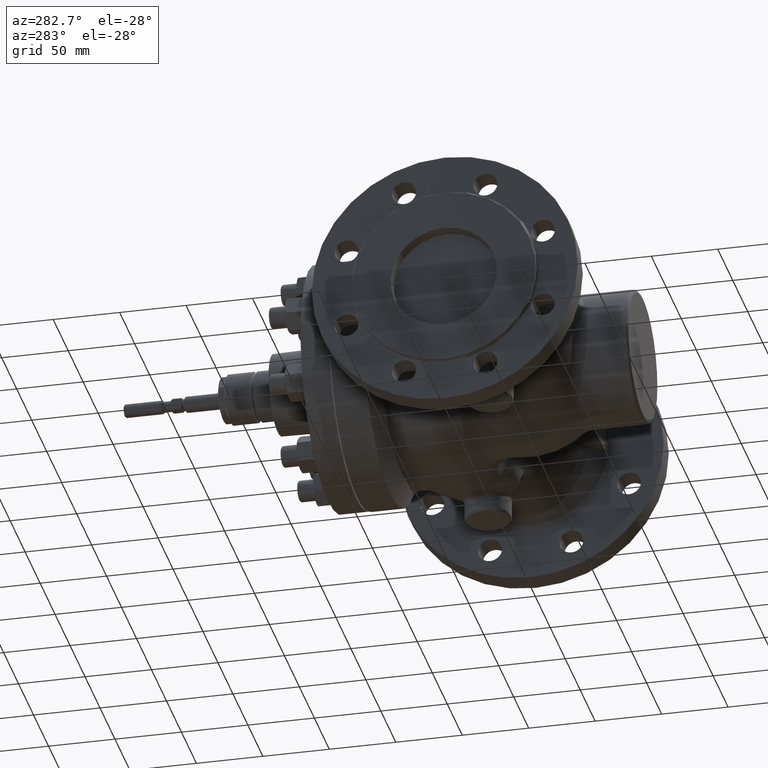
[diagram: clean part render]
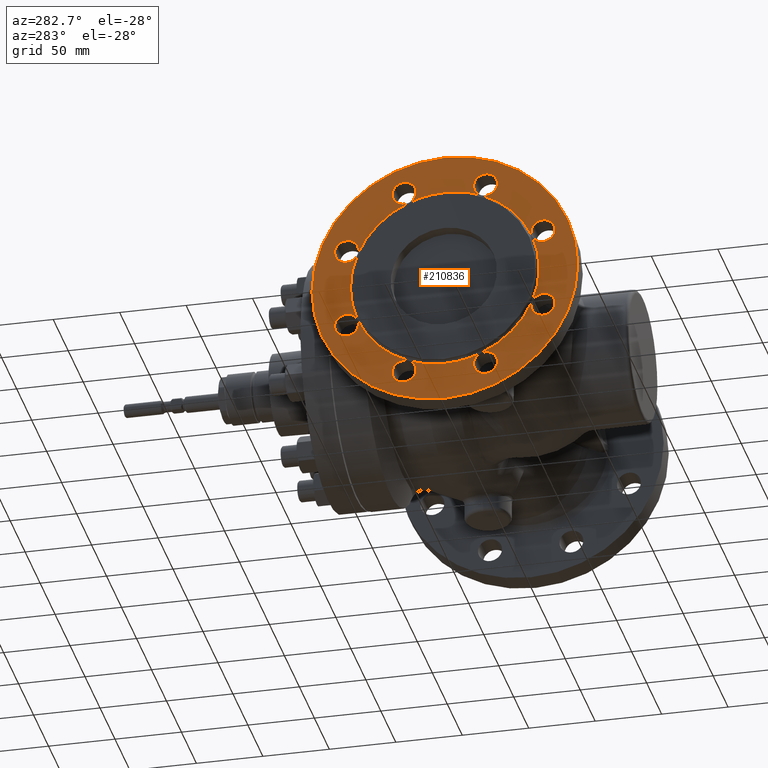
[diagram: same view with one face highlighted and labeled with its STEP entity id]
A machine part, auxiliary view. The second image highlights one B-rep face of the part: STEP entity #210836.
In plain terms, the highlighted planar face has unit normal (1, 0, 0).
Its self-contained STEP definition (entity closure, byte-faithful):
#1785 = CIRCLE ( 'NONE', #119734, 71.00000000000000000 ) ;
#1994 = EDGE_CURVE ( 'NONE', #60912, #6606, #66697, .T. ) ;
#2110 = DIRECTION ( 'NONE',  ( -1.000000000000000000, 0.0000000000000000000, 0.0000000000000000000 ) ) ;
#3105 = CIRCLE ( 'NONE', #41149, 71.00000000000000000 ) ;
#3149 = ORIENTED_EDGE ( 'NONE', *, *, #214498, .F. ) ;
#3816 = AXIS2_PLACEMENT_3D ( 'NONE', #120384, #16961, #137665 ) ;
#4684 = ORIENTED_EDGE ( 'NONE', *, *, #207527, .F. ) ;
#5909 = EDGE_CURVE ( 'NONE', #163889, #186524, #88114, .T. ) ;
#6013 = DIRECTION ( 'NONE',  ( 0.0000000000000000000, 0.0000000000000000000, -1.000000000000000000 ) ) ;
#6606 = VERTEX_POINT ( 'NONE', #188975 ) ;
#8172 = DIRECTION ( 'NONE',  ( -1.000000000000000000, 0.0000000000000000000, -0.0000000000000000000 ) ) ;
#8519 = CIRCLE ( 'NONE', #126466, 71.00000000000000000 ) ;
#8852 = DIRECTION ( 'NONE',  ( -1.000000000000000000, 0.0000000000000000000, -0.0000000000000000000 ) ) ;
#9174 = DIRECTION ( 'NONE',  ( 0.0000000000000000000, 0.0000000000000000000, -1.000000000000000000 ) ) ;
#9451 = CIRCLE ( 'NONE', #89922, 8.999999999999994700 ) ;
#9944 = ORIENTED_EDGE ( 'NONE', *, *, #95791, .F. ) ;
#10258 = CARTESIAN_POINT ( 'NONE',  ( -152.0000000000000000, 30.61467458920700600, -73.91036260090301400 ) ) ;
#10967 = CARTESIAN_POINT ( 'NONE',  ( -152.0000000000000000, 73.91036260090334100, 30.61467458920623100 ) ) ;
#11139 = CARTESIAN_POINT ( 'NONE',  ( -152.0000000000000000, 0.0000000000000000000, 0.0000000000000000000 ) ) ;
#12964 = DIRECTION ( 'NONE',  ( 1.000000000000000000, 0.0000000000000000000, 0.0000000000000000000 ) ) ;
#13779 = DIRECTION ( 'NONE',  ( -1.000000000000000000, 0.0000000000000000000, -0.0000000000000000000 ) ) ;
#16538 = AXIS2_PLACEMENT_3D ( 'NONE', #52360, #173123, #69749 ) ;
#16961 = DIRECTION ( 'NONE',  ( -1.000000000000000000, 0.0000000000000000000, 0.0000000000000000000 ) ) ;
#18162 = AXIS2_PLACEMENT_3D ( 'NONE', #140392, #37029, #157790 ) ;
#19653 = CIRCLE ( 'NONE', #156732, 8.999999999999991100 ) ;
#19673 = CARTESIAN_POINT ( 'NONE',  ( -152.0000000000000000, -67.54640157022421900, -36.97863561988569400 ) ) ;
#19874 = AXIS2_PLACEMENT_3D ( 'NONE', #33044, #153793, #50390 ) ;
#21544 = ORIENTED_EDGE ( 'NONE', *, *, #184461, .T. ) ;
#22232 = DIRECTION ( 'NONE',  ( -1.000000000000000000, -0.0000000000000000000, 0.0000000000000000000 ) ) ;
#22642 = ORIENTED_EDGE ( 'NONE', *, *, #183065, .F. ) ;
#23162 = CARTESIAN_POINT ( 'NONE',  ( -152.0000000000000000, 73.91036260090334100, 30.61467458920623100 ) ) ;
#26119 = CIRCLE ( 'NONE', #157740, 8.999999999999994700 ) ;
#26581 = CARTESIAN_POINT ( 'NONE',  ( -152.0000000000000000, -27.17052369792075000, 65.59544680830160200 ) ) ;
#26882 = CARTESIAN_POINT ( 'NONE',  ( -152.0000000000000000, 27.17052369792210000, 65.59544680830104800 ) ) ;
#27617 = DIRECTION ( 'NONE',  ( 0.0000000000000000000, 0.7071067811865483500, 0.7071067811865468000 ) ) ;
#28283 = CIRCLE ( 'NONE', #182752, 71.00000000000000000 ) ;
#28324 = DIRECTION ( 'NONE',  ( 0.0000000000000000000, -0.7071067811865392500, 0.7071067811865557900 ) ) ;
#28410 = EDGE_CURVE ( 'NONE', #214951, #136368, #62942, .T. ) ;
#28502 = DIRECTION ( 'NONE',  ( 0.0000000000000000000, 0.0000000000000000000, -1.000000000000000000 ) ) ;
#31631 = AXIS2_PLACEMENT_3D ( 'NONE', #139790, #36435, #157194 ) ;
#33044 = CARTESIAN_POINT ( 'NONE',  ( -152.0000000000000000, -30.61467458920748900, -73.91036260090280100 ) ) ;
#35061 = CIRCLE ( 'NONE', #186733, 8.999999999999992900 ) ;
#35837 = DIRECTION ( 'NONE',  ( 0.0000000000000000000, 0.0000000000000000000, -1.000000000000000000 ) ) ;
#36265 = CIRCLE ( 'NONE', #105990, 8.999999999999996400 ) ;
#36435 = DIRECTION ( 'NONE',  ( 1.000000000000000000, 0.0000000000000000000, 0.0000000000000000000 ) ) ;
#37029 = DIRECTION ( 'NONE',  ( -1.000000000000000000, 0.0000000000000000000, 0.0000000000000000000 ) ) ;
#37248 = CIRCLE ( 'NONE', #182819, 8.999999999999994700 ) ;
#37424 = EDGE_LOOP ( 'NONE', ( #208990, #157792, #146746, #183095, #70281, #160712, #61340, #187924, #91752, #40925, #3149, #182311, #164377, #165674, #22642, #52126, #93918, #21544, #76875, #150359, #9944, #88940, #129931, #51671, #93120, #153531, #76435, #200076, #100669, #4684, #110560, #165907, #107068, #104419 ) ) ;
#38708 = CARTESIAN_POINT ( 'NONE',  ( -152.0000000000000000, -21.61467458920749600, -73.91036260090282900 ) ) ;
#39411 = DIRECTION ( 'NONE',  ( -1.000000000000000000, -0.0000000000000000000, -0.0000000000000000000 ) ) ;
#39873 = AXIS2_PLACEMENT_3D ( 'NONE', #69815, #139187, #35837 ) ;
#39882 = DIRECTION ( 'NONE',  ( -1.000000000000000000, 0.0000000000000000000, 0.0000000000000000000 ) ) ;
#40325 = VERTEX_POINT ( 'NONE', #45529 ) ;
#40496 = DIRECTION ( 'NONE',  ( 0.0000000000000000000, -0.7071067811865392500, 0.7071067811865557900 ) ) ;
#40925 = ORIENTED_EDGE ( 'NONE', *, *, #222165, .T. ) ;
#41149 = AXIS2_PLACEMENT_3D ( 'NONE', #87257, #208030, #104649 ) ;
#41284 = AXIS2_PLACEMENT_3D ( 'NONE', #23162, #143882, #40496 ) ;
#41391 = VERTEX_POINT ( 'NONE', #141954 ) ;
#41672 = DIRECTION ( 'NONE',  ( -1.000000000000000000, 0.0000000000000000000, 0.0000000000000000000 ) ) ;
#43558 = EDGE_CURVE ( 'NONE', #6606, #70637, #35061, .T. ) ;
#45529 = CARTESIAN_POINT ( 'NONE',  ( -152.0000000000000000, 65.59544680830133200, -27.17052369792141400 ) ) ;
#45813 = DIRECTION ( 'NONE',  ( -1.000000000000000000, 0.0000000000000000000, 0.0000000000000000000 ) ) ;
#46784 = CARTESIAN_POINT ( 'NONE',  ( -152.0000000000000000, 0.0000000000000000000, 0.0000000000000000000 ) ) ;
#49306 = VERTEX_POINT ( 'NONE', #57943 ) ;
#49864 = FACE_OUTER_BOUND ( 'NONE', #196325, .T. ) ;
#50390 = DIRECTION ( 'NONE',  ( 0.0000000000000000000, 1.000000000000000000, -3.083952846180992100E-015 ) ) ;
#51671 = ORIENTED_EDGE ( 'NONE', *, *, #64474, .F. ) ;
#52126 = ORIENTED_EDGE ( 'NONE', *, *, #160630, .F. ) ;
#52360 = CARTESIAN_POINT ( 'NONE',  ( -152.0000000000000000, -73.91036260090311300, -30.61467458920673900 ) ) ;
#53356 = CARTESIAN_POINT ( 'NONE',  ( -152.0000000000000000, 24.25071355852807300, -80.27432363158193600 ) ) ;
#53823 = EDGE_CURVE ( 'NONE', #207499, #148430, #28283, .T. ) ;
#54824 = CARTESIAN_POINT ( 'NONE',  ( -152.0000000000000000, -30.61467458920748900, -73.91036260090280100 ) ) ;
#57513 = EDGE_CURVE ( 'NONE', #203152, #41391, #109070, .T. ) ;
#57943 = CARTESIAN_POINT ( 'NONE',  ( -152.0000000000000000, 39.61467458920800800, 73.91036260090250200 ) ) ;
#60781 = EDGE_CURVE ( 'NONE', #203152, #179415, #138484, .T. ) ;
#60854 = DIRECTION ( 'NONE',  ( -1.000000000000000000, -0.0000000000000000000, -0.0000000000000000000 ) ) ;
#60912 = VERTEX_POINT ( 'NONE', #19673 ) ;
#61285 = CARTESIAN_POINT ( 'NONE',  ( -152.0000000000000000, 21.61467458920801100, 73.91036260090270100 ) ) ;
#61340 = ORIENTED_EDGE ( 'NONE', *, *, #203933, .F. ) ;
#62263 = VERTEX_POINT ( 'NONE', #181288 ) ;
#62781 = EDGE_CURVE ( 'NONE', #40325, #163889, #70975, .T. ) ;
#62942 = CIRCLE ( 'NONE', #157380, 100.0000000000000000 ) ;
#63707 = CIRCLE ( 'NONE', #163015, 71.00000000000000000 ) ;
#64158 = DIRECTION ( 'NONE',  ( 0.0000000000000000000, 0.0000000000000000000, 1.000000000000000000 ) ) ;
#64474 = EDGE_CURVE ( 'NONE', #96248, #174652, #89561, .T. ) ;
#65655 = CIRCLE ( 'NONE', #31631, 71.00000000000000000 ) ;
#66189 = DIRECTION ( 'NONE',  ( -1.000000000000000000, 0.0000000000000000000, 0.0000000000000000000 ) ) ;
#66306 = CIRCLE ( 'NONE', #153861, 8.999999999999996400 ) ;
#66697 = CIRCLE ( 'NONE', #89872, 8.999999999999992900 ) ;
#67730 = CARTESIAN_POINT ( 'NONE',  ( -152.0000000000000000, 1.224646799147353200E-014, -100.0000000000000000 ) ) ;
#67788 = CIRCLE ( 'NONE', #41284, 8.999999999999994700 ) ;
#68122 = DIRECTION ( 'NONE',  ( -1.000000000000000000, 0.0000000000000000000, 0.0000000000000000000 ) ) ;
#69749 = DIRECTION ( 'NONE',  ( 0.0000000000000000000, 0.7071067811865440200, -0.7071067811865509000 ) ) ;
#69815 = CARTESIAN_POINT ( 'NONE',  ( -152.0000000000000000, 69.00000000000000000, 0.0000000000000000000 ) ) ;
#70281 = ORIENTED_EDGE ( 'NONE', *, *, #164621, .T. ) ;
#70637 = VERTEX_POINT ( 'NONE', #108557 ) ;
#70975 = CIRCLE ( 'NONE', #83275, 71.00000000000000000 ) ;
#72006 = CARTESIAN_POINT ( 'NONE',  ( -152.0000000000000000, 0.0000000000000000000, 100.0000000000000000 ) ) ;
#72202 = DIRECTION ( 'NONE',  ( 0.0000000000000000000, 1.000000000000000000, -3.083952846180992100E-015 ) ) ;
#72314 = CARTESIAN_POINT ( 'NONE',  ( -152.0000000000000000, 0.0000000000000000000, 0.0000000000000000000 ) ) ;
#75772 = CARTESIAN_POINT ( 'NONE',  ( -152.0000000000000000, -36.97863561988546600, 67.54640157022436100 ) ) ;
#76435 = ORIENTED_EDGE ( 'NONE', *, *, #150073, .T. ) ;
#76875 = ORIENTED_EDGE ( 'NONE', *, *, #43558, .F. ) ;
#78516 = CARTESIAN_POINT ( 'NONE',  ( -152.0000000000000000, 73.91036260090291400, -21.61467458920724000 ) ) ;
#79031 = AXIS2_PLACEMENT_3D ( 'NONE', #215963, #112588, #9174 ) ;
#79629 = EDGE_CURVE ( 'NONE', #174652, #87482, #26119, .T. ) ;
#79980 = CARTESIAN_POINT ( 'NONE',  ( -152.0000000000000000, -24.25071355852750400, 80.27432363158209200 ) ) ;
#80059 = CARTESIAN_POINT ( 'NONE',  ( -152.0000000000000000, -27.17052369792164200, -65.59544680830123300 ) ) ;
#81647 = CARTESIAN_POINT ( 'NONE',  ( -152.0000000000000000, 0.0000000000000000000, 0.0000000000000000000 ) ) ;
#83115 = CARTESIAN_POINT ( 'NONE',  ( -152.0000000000000000, 30.61467458920800800, 73.91036260090260200 ) ) ;
#83275 = AXIS2_PLACEMENT_3D ( 'NONE', #81647, #202391, #99007 ) ;
#84936 = FACE_BOUND ( 'NONE', #37424, .T. ) ;
#85116 = VERTEX_POINT ( 'NONE', #119896 ) ;
#86466 = AXIS2_PLACEMENT_3D ( 'NONE', #117204, #13779, #134506 ) ;
#86549 = EDGE_CURVE ( 'NONE', #41391, #197203, #9451, .T. ) ;
#87257 = CARTESIAN_POINT ( 'NONE',  ( -152.0000000000000000, 0.0000000000000000000, 0.0000000000000000000 ) ) ;
#87482 = VERTEX_POINT ( 'NONE', #80059 ) ;
#88114 = CIRCLE ( 'NONE', #173856, 8.999999999999994700 ) ;
#88853 = EDGE_CURVE ( 'NONE', #207499, #203086, #217150, .T. ) ;
#88940 = ORIENTED_EDGE ( 'NONE', *, *, #145115, .T. ) ;
#89561 = CIRCLE ( 'NONE', #19874, 8.999999999999994700 ) ;
#89633 = DIRECTION ( 'NONE',  ( 0.0000000000000000000, 0.0000000000000000000, -1.000000000000000000 ) ) ;
#89872 = AXIS2_PLACEMENT_3D ( 'NONE', #143261, #39882, #160668 ) ;
#89922 = AXIS2_PLACEMENT_3D ( 'NONE', #96267, #217020, #113642 ) ;
#90843 = DIRECTION ( 'NONE',  ( 1.000000000000000000, 0.0000000000000000000, 0.0000000000000000000 ) ) ;
#91752 = ORIENTED_EDGE ( 'NONE', *, *, #53823, .T. ) ;
#93120 = ORIENTED_EDGE ( 'NONE', *, *, #136528, .F. ) ;
#93148 = EDGE_CURVE ( 'NONE', #179415, #164323, #19653, .T. ) ;
#93918 = ORIENTED_EDGE ( 'NONE', *, *, #86549, .F. ) ;
#94486 = EDGE_CURVE ( 'NONE', #170181, #163889, #143723, .T. ) ;
#95791 = EDGE_CURVE ( 'NONE', #70637, #60912, #130085, .T. ) ;
#96248 = VERTEX_POINT ( 'NONE', #38708 ) ;
#96267 = CARTESIAN_POINT ( 'NONE',  ( -152.0000000000000000, -73.91036260090291400, 30.61467458920723300 ) ) ;
#98052 = DIRECTION ( 'NONE',  ( 1.000000000000000000, 0.0000000000000000000, 0.0000000000000000000 ) ) ;
#98189 = CARTESIAN_POINT ( 'NONE',  ( -152.0000000000000000, 73.91036260090291400, -30.61467458920723300 ) ) ;
#99007 = DIRECTION ( 'NONE',  ( 0.0000000000000000000, 0.0000000000000000000, -1.000000000000000000 ) ) ;
#99739 = CARTESIAN_POINT ( 'NONE',  ( -152.0000000000000000, 0.0000000000000000000, -71.00000000000000000 ) ) ;
#100319 = DIRECTION ( 'NONE',  ( -1.000000000000000000, -0.0000000000000000000, 0.0000000000000000000 ) ) ;
#100490 = DIRECTION ( 'NONE',  ( 0.0000000000000000000, -1.000000000000000000, 1.079383496163347300E-014 ) ) ;
#100669 = ORIENTED_EDGE ( 'NONE', *, *, #224161, .F. ) ;
#100809 = DIRECTION ( 'NONE',  ( -1.000000000000000000, 0.0000000000000000000, 0.0000000000000000000 ) ) ;
#102175 = EDGE_CURVE ( 'NONE', #186524, #170181, #67788, .T. ) ;
#103690 = AXIS2_PLACEMENT_3D ( 'NONE', #149212, #45813, #166607 ) ;
#104419 = ORIENTED_EDGE ( 'NONE', *, *, #185060, .F. ) ;
#104458 = CIRCLE ( 'NONE', #79031, 71.00000000000000000 ) ;
#104649 = DIRECTION ( 'NONE',  ( 0.0000000000000000000, 0.0000000000000000000, -1.000000000000000000 ) ) ;
#105551 = CARTESIAN_POINT ( 'NONE',  ( -152.0000000000000000, -30.61467458920648700, 73.91036260090322700 ) ) ;
#105990 = AXIS2_PLACEMENT_3D ( 'NONE', #125629, #22232, #142962 ) ;
#106750 = CARTESIAN_POINT ( 'NONE',  ( -152.0000000000000000, 67.54640157022448900, 36.97863561988523200 ) ) ;
#107068 = ORIENTED_EDGE ( 'NONE', *, *, #181406, .F. ) ;
#108557 = CARTESIAN_POINT ( 'NONE',  ( -152.0000000000000000, -65.59544680830151700, -27.17052369792098400 ) ) ;
#109070 = CIRCLE ( 'NONE', #123614, 71.00000000000000000 ) ;
#109432 = DIRECTION ( 'NONE',  ( 1.000000000000000000, 0.0000000000000000000, 0.0000000000000000000 ) ) ;
#110236 = CARTESIAN_POINT ( 'NONE',  ( -152.0000000000000000, 65.59544680830170200, 27.17052369792052600 ) ) ;
#110525 = CARTESIAN_POINT ( 'NONE',  ( -152.0000000000000000, 36.97863561988593500, -67.54640157022409100 ) ) ;
#110560 = ORIENTED_EDGE ( 'NONE', *, *, #165245, .T. ) ;
#111576 = CARTESIAN_POINT ( 'NONE',  ( -152.0000000000000000, 73.91036260090334100, 30.61467458920623100 ) ) ;
#112260 = CARTESIAN_POINT ( 'NONE',  ( -152.0000000000000000, 30.61467458920800800, 73.91036260090260200 ) ) ;
#112579 = AXIS2_PLACEMENT_3D ( 'NONE', #171518, #68122, #188858 ) ;
#112588 = DIRECTION ( 'NONE',  ( 1.000000000000000000, 0.0000000000000000000, 0.0000000000000000000 ) ) ;
#113642 = DIRECTION ( 'NONE',  ( 0.0000000000000000000, 0.0000000000000000000, -1.000000000000000000 ) ) ;
#115589 = DIRECTION ( 'NONE',  ( 0.0000000000000000000, 0.0000000000000000000, 1.000000000000000000 ) ) ;
#116375 = CARTESIAN_POINT ( 'NONE',  ( -152.0000000000000000, 0.0000000000000000000, 0.0000000000000000000 ) ) ;
#117204 = CARTESIAN_POINT ( 'NONE',  ( -152.0000000000000000, 30.61467458920800800, 73.91036260090260200 ) ) ;
#119734 = AXIS2_PLACEMENT_3D ( 'NONE', #212824, #109432, #6013 ) ;
#119896 = CARTESIAN_POINT ( 'NONE',  ( -152.0000000000000000, 73.91036260090291400, -39.61467458920722600 ) ) ;
#120384 = CARTESIAN_POINT ( 'NONE',  ( -152.0000000000000000, -30.61467458920648700, 73.91036260090322700 ) ) ;
#121901 = PLANE ( 'NONE',  #39873 ) ;
#122803 = CIRCLE ( 'NONE', #3816, 8.999999999999991100 ) ;
#122895 = DIRECTION ( 'NONE',  ( 0.0000000000000000000, -0.7071067811865537900, -0.7071067811865411300 ) ) ;
#123614 = AXIS2_PLACEMENT_3D ( 'NONE', #201450, #98052, #218811 ) ;
#125629 = CARTESIAN_POINT ( 'NONE',  ( -152.0000000000000000, 30.61467458920700600, -73.91036260090301400 ) ) ;
#126213 = VERTEX_POINT ( 'NONE', #110525 ) ;
#126466 = AXIS2_PLACEMENT_3D ( 'NONE', #11139, #131860, #28502 ) ;
#127152 = ORIENTED_EDGE ( 'NONE', *, *, #174480, .T. ) ;
#128487 = VERTEX_POINT ( 'NONE', #99739 ) ;
#128911 = DIRECTION ( 'NONE',  ( 0.0000000000000000000, -0.7071067811865392500, 0.7071067811865557900 ) ) ;
#129586 = DIRECTION ( 'NONE',  ( 0.0000000000000000000, -1.000000000000000000, 1.079383496163347300E-014 ) ) ;
#129931 = ORIENTED_EDGE ( 'NONE', *, *, #79629, .F. ) ;
#130085 = CIRCLE ( 'NONE', #16538, 8.999999999999992900 ) ;
#130982 = DIRECTION ( 'NONE',  ( -1.000000000000000000, -0.0000000000000000000, 0.0000000000000000000 ) ) ;
#131685 = DIRECTION ( 'NONE',  ( -1.000000000000000000, 0.0000000000000000000, -0.0000000000000000000 ) ) ;
#131860 = DIRECTION ( 'NONE',  ( 1.000000000000000000, 0.0000000000000000000, 0.0000000000000000000 ) ) ;
#132004 = AXIS2_PLACEMENT_3D ( 'NONE', #83115, #203867, #100490 ) ;
#133679 = DIRECTION ( 'NONE',  ( 0.0000000000000000000, 0.0000000000000000000, -1.000000000000000000 ) ) ;
#134506 = DIRECTION ( 'NONE',  ( 0.0000000000000000000, -1.000000000000000000, 1.079383496163347300E-014 ) ) ;
#136368 = VERTEX_POINT ( 'NONE', #67730 ) ;
#136528 = EDGE_CURVE ( 'NONE', #87482, #96248, #37248, .T. ) ;
#136867 = AXIS2_PLACEMENT_3D ( 'NONE', #98189, #218950, #115589 ) ;
#137665 = DIRECTION ( 'NONE',  ( 0.0000000000000000000, -0.7071067811865537900, -0.7071067811865411300 ) ) ;
#138484 = CIRCLE ( 'NONE', #18162, 8.999999999999991100 ) ;
#139187 = DIRECTION ( 'NONE',  ( 1.000000000000000000, 0.0000000000000000000, 0.0000000000000000000 ) ) ;
#139472 = CIRCLE ( 'NONE', #136867, 8.999999999999994700 ) ;
#139790 = CARTESIAN_POINT ( 'NONE',  ( -152.0000000000000000, 0.0000000000000000000, 0.0000000000000000000 ) ) ;
#139969 = AXIS2_PLACEMENT_3D ( 'NONE', #142803, #39411, #160202 ) ;
#140392 = CARTESIAN_POINT ( 'NONE',  ( -152.0000000000000000, -30.61467458920648700, 73.91036260090322700 ) ) ;
#141954 = CARTESIAN_POINT ( 'NONE',  ( -152.0000000000000000, -65.59544680830133200, 27.17052369792141400 ) ) ;
#142621 = VERTEX_POINT ( 'NONE', #53356 ) ;
#142803 = CARTESIAN_POINT ( 'NONE',  ( -152.0000000000000000, 73.91036260090291400, -30.61467458920723300 ) ) ;
#142962 = DIRECTION ( 'NONE',  ( 0.0000000000000000000, 0.7071067811865483500, 0.7071067811865468000 ) ) ;
#143044 = CARTESIAN_POINT ( 'NONE',  ( -152.0000000000000000, 80.27432363158217800, 24.25071355852723100 ) ) ;
#143261 = CARTESIAN_POINT ( 'NONE',  ( -152.0000000000000000, -73.91036260090311300, -30.61467458920673900 ) ) ;
#143723 = CIRCLE ( 'NONE', #152419, 8.999999999999994700 ) ;
#143882 = DIRECTION ( 'NONE',  ( -1.000000000000000000, 0.0000000000000000000, -0.0000000000000000000 ) ) ;
#145068 = CARTESIAN_POINT ( 'NONE',  ( -152.0000000000000000, -30.61467458920748900, -73.91036260090280100 ) ) ;
#145115 = EDGE_CURVE ( 'NONE', #70637, #87482, #104458, .T. ) ;
#145750 = EDGE_CURVE ( 'NONE', #85116, #40325, #139472, .T. ) ;
#146334 = CIRCLE ( 'NONE', #223988, 8.999999999999994700 ) ;
#146746 = ORIENTED_EDGE ( 'NONE', *, *, #102175, .F. ) ;
#148363 = EDGE_CURVE ( 'NONE', #87482, #128487, #63707, .T. ) ;
#148430 = VERTEX_POINT ( 'NONE', #194981 ) ;
#149212 = CARTESIAN_POINT ( 'NONE',  ( -152.0000000000000000, 0.0000000000000000000, 0.0000000000000000000 ) ) ;
#150073 = EDGE_CURVE ( 'NONE', #128487, #181905, #1785, .T. ) ;
#150359 = ORIENTED_EDGE ( 'NONE', *, *, #1994, .F. ) ;
#150953 = AXIS2_PLACEMENT_3D ( 'NONE', #169599, #66189, #186911 ) ;
#151846 = CIRCLE ( 'NONE', #200851, 8.999999999999996400 ) ;
#152419 = AXIS2_PLACEMENT_3D ( 'NONE', #111576, #8172, #128911 ) ;
#153531 = ORIENTED_EDGE ( 'NONE', *, *, #148363, .T. ) ;
#153793 = DIRECTION ( 'NONE',  ( -1.000000000000000000, 0.0000000000000000000, 0.0000000000000000000 ) ) ;
#153861 = AXIS2_PLACEMENT_3D ( 'NONE', #10258, #130982, #27617 ) ;
#156604 = EDGE_CURVE ( 'NONE', #142621, #181905, #36265, .T. ) ;
#156732 = AXIS2_PLACEMENT_3D ( 'NONE', #105551, #2110, #122895 ) ;
#157194 = DIRECTION ( 'NONE',  ( 0.0000000000000000000, 0.0000000000000000000, -1.000000000000000000 ) ) ;
#157380 = AXIS2_PLACEMENT_3D ( 'NONE', #46784, #167570, #64158 ) ;
#157740 = AXIS2_PLACEMENT_3D ( 'NONE', #145068, #41672, #162466 ) ;
#157790 = DIRECTION ( 'NONE',  ( 0.0000000000000000000, -0.7071067811865537900, -0.7071067811865411300 ) ) ;
#157792 = ORIENTED_EDGE ( 'NONE', *, *, #94486, .F. ) ;
#160202 = DIRECTION ( 'NONE',  ( 0.0000000000000000000, 0.0000000000000000000, 1.000000000000000000 ) ) ;
#160630 = EDGE_CURVE ( 'NONE', #197203, #62263, #184366, .T. ) ;
#160668 = DIRECTION ( 'NONE',  ( 0.0000000000000000000, 0.7071067811865440200, -0.7071067811865509000 ) ) ;
#160712 = ORIENTED_EDGE ( 'NONE', *, *, #179773, .F. ) ;
#162466 = DIRECTION ( 'NONE',  ( 0.0000000000000000000, 1.000000000000000000, -3.083952846180992100E-015 ) ) ;
#163015 = AXIS2_PLACEMENT_3D ( 'NONE', #194242, #90843, #211603 ) ;
#163889 = VERTEX_POINT ( 'NONE', #110236 ) ;
#164279 = CARTESIAN_POINT ( 'NONE',  ( -152.0000000000000000, 73.91036260090291400, -30.61467458920723300 ) ) ;
#164323 = VERTEX_POINT ( 'NONE', #79980 ) ;
#164377 = ORIENTED_EDGE ( 'NONE', *, *, #60781, .F. ) ;
#164621 = EDGE_CURVE ( 'NONE', #163889, #207499, #8519, .T. ) ;
#165245 = EDGE_CURVE ( 'NONE', #181905, #40325, #3105, .T. ) ;
#165674 = ORIENTED_EDGE ( 'NONE', *, *, #57513, .T. ) ;
#165907 = ORIENTED_EDGE ( 'NONE', *, *, #145750, .F. ) ;
#166151 = AXIS2_PLACEMENT_3D ( 'NONE', #72314, #193047, #89633 ) ;
#166607 = DIRECTION ( 'NONE',  ( 0.0000000000000000000, 0.0000000000000000000, 1.000000000000000000 ) ) ;
#167570 = DIRECTION ( 'NONE',  ( -1.000000000000000000, 0.0000000000000000000, 0.0000000000000000000 ) ) ;
#169599 = CARTESIAN_POINT ( 'NONE',  ( -152.0000000000000000, -73.91036260090291400, 30.61467458920723300 ) ) ;
#170181 = VERTEX_POINT ( 'NONE', #143044 ) ;
#171518 = CARTESIAN_POINT ( 'NONE',  ( -152.0000000000000000, -73.91036260090291400, 30.61467458920723300 ) ) ;
#173123 = DIRECTION ( 'NONE',  ( -1.000000000000000000, 0.0000000000000000000, 0.0000000000000000000 ) ) ;
#173856 = AXIS2_PLACEMENT_3D ( 'NONE', #10967, #131685, #28324 ) ;
#173886 = AXIS2_PLACEMENT_3D ( 'NONE', #112260, #8852, #129586 ) ;
#174480 = EDGE_CURVE ( 'NONE', #136368, #214951, #191344, .T. ) ;
#174652 = VERTEX_POINT ( 'NONE', #198205 ) ;
#175575 = DIRECTION ( 'NONE',  ( -1.000000000000000000, 0.0000000000000000000, 0.0000000000000000000 ) ) ;
#179415 = VERTEX_POINT ( 'NONE', #75772 ) ;
#179773 = EDGE_CURVE ( 'NONE', #49306, #207499, #184451, .T. ) ;
#181288 = CARTESIAN_POINT ( 'NONE',  ( -152.0000000000000000, -73.91036260090291400, 39.61467458920722600 ) ) ;
#181406 = EDGE_CURVE ( 'NONE', #216031, #85116, #187049, .T. ) ;
#181592 = DIRECTION ( 'NONE',  ( 0.0000000000000000000, 0.0000000000000000000, 1.000000000000000000 ) ) ;
#181905 = VERTEX_POINT ( 'NONE', #198593 ) ;
#182311 = ORIENTED_EDGE ( 'NONE', *, *, #93148, .F. ) ;
#182752 = AXIS2_PLACEMENT_3D ( 'NONE', #116375, #12964, #133679 ) ;
#182819 = AXIS2_PLACEMENT_3D ( 'NONE', #54824, #175575, #72202 ) ;
#183065 = EDGE_CURVE ( 'NONE', #62263, #41391, #205914, .T. ) ;
#183095 = ORIENTED_EDGE ( 'NONE', *, *, #5909, .F. ) ;
#183331 = ORIENTED_EDGE ( 'NONE', *, *, #28410, .T. ) ;
#184366 = CIRCLE ( 'NONE', #150953, 8.999999999999994700 ) ;
#184451 = CIRCLE ( 'NONE', #86466, 8.999999999999994700 ) ;
#184461 = EDGE_CURVE ( 'NONE', #41391, #70637, #192267, .T. ) ;
#185060 = EDGE_CURVE ( 'NONE', #40325, #216031, #146334, .T. ) ;
#186524 = VERTEX_POINT ( 'NONE', #106750 ) ;
#186733 = AXIS2_PLACEMENT_3D ( 'NONE', #204188, #100809, #221552 ) ;
#186911 = DIRECTION ( 'NONE',  ( 0.0000000000000000000, 0.0000000000000000000, -1.000000000000000000 ) ) ;
#187049 = CIRCLE ( 'NONE', #139969, 8.999999999999994700 ) ;
#187924 = ORIENTED_EDGE ( 'NONE', *, *, #88853, .F. ) ;
#188858 = DIRECTION ( 'NONE',  ( 0.0000000000000000000, 0.0000000000000000000, -1.000000000000000000 ) ) ;
#188975 = CARTESIAN_POINT ( 'NONE',  ( -152.0000000000000000, -80.27432363158200700, -24.25071355852778200 ) ) ;
#189175 = CARTESIAN_POINT ( 'NONE',  ( -152.0000000000000000, -73.91036260090291400, 21.61467458920724000 ) ) ;
#191344 = CIRCLE ( 'NONE', #103690, 100.0000000000000000 ) ;
#192267 = CIRCLE ( 'NONE', #166151, 71.00000000000000000 ) ;
#193047 = DIRECTION ( 'NONE',  ( 1.000000000000000000, 0.0000000000000000000, 0.0000000000000000000 ) ) ;
#194242 = CARTESIAN_POINT ( 'NONE',  ( -152.0000000000000000, 0.0000000000000000000, 0.0000000000000000000 ) ) ;
#194981 = CARTESIAN_POINT ( 'NONE',  ( -152.0000000000000000, 8.694992273946206600E-015, 71.00000000000000000 ) ) ;
#196325 = EDGE_LOOP ( 'NONE', ( #183331, #127152 ) ) ;
#197203 = VERTEX_POINT ( 'NONE', #189175 ) ;
#198205 = CARTESIAN_POINT ( 'NONE',  ( -152.0000000000000000, -39.61467458920748200, -73.91036260090277200 ) ) ;
#198593 = CARTESIAN_POINT ( 'NONE',  ( -152.0000000000000000, 27.17052369792121200, -65.59544680830141800 ) ) ;
#200076 = ORIENTED_EDGE ( 'NONE', *, *, #156604, .F. ) ;
#200851 = AXIS2_PLACEMENT_3D ( 'NONE', #203696, #100319, #221063 ) ;
#201450 = CARTESIAN_POINT ( 'NONE',  ( -152.0000000000000000, 0.0000000000000000000, 0.0000000000000000000 ) ) ;
#202391 = DIRECTION ( 'NONE',  ( 1.000000000000000000, 0.0000000000000000000, 0.0000000000000000000 ) ) ;
#203086 = VERTEX_POINT ( 'NONE', #61285 ) ;
#203152 = VERTEX_POINT ( 'NONE', #26581 ) ;
#203696 = CARTESIAN_POINT ( 'NONE',  ( -152.0000000000000000, 30.61467458920700600, -73.91036260090301400 ) ) ;
#203867 = DIRECTION ( 'NONE',  ( -1.000000000000000000, 0.0000000000000000000, -0.0000000000000000000 ) ) ;
#203933 = EDGE_CURVE ( 'NONE', #203086, #49306, #207094, .T. ) ;
#204188 = CARTESIAN_POINT ( 'NONE',  ( -152.0000000000000000, -73.91036260090311300, -30.61467458920673900 ) ) ;
#205914 = CIRCLE ( 'NONE', #112579, 8.999999999999994700 ) ;
#207094 = CIRCLE ( 'NONE', #132004, 8.999999999999994700 ) ;
#207499 = VERTEX_POINT ( 'NONE', #26882 ) ;
#207527 = EDGE_CURVE ( 'NONE', #181905, #126213, #66306, .T. ) ;
#208030 = DIRECTION ( 'NONE',  ( 1.000000000000000000, 0.0000000000000000000, 0.0000000000000000000 ) ) ;
#208990 = ORIENTED_EDGE ( 'NONE', *, *, #62781, .T. ) ;
#210836 = ADVANCED_FACE ( 'NONE', ( #84936, #49864 ), #121901, .F. ) ;
#211603 = DIRECTION ( 'NONE',  ( 0.0000000000000000000, 0.0000000000000000000, -1.000000000000000000 ) ) ;
#212824 = CARTESIAN_POINT ( 'NONE',  ( -152.0000000000000000, 0.0000000000000000000, 0.0000000000000000000 ) ) ;
#214498 = EDGE_CURVE ( 'NONE', #164323, #203152, #122803, .T. ) ;
#214951 = VERTEX_POINT ( 'NONE', #72006 ) ;
#215963 = CARTESIAN_POINT ( 'NONE',  ( -152.0000000000000000, 0.0000000000000000000, 0.0000000000000000000 ) ) ;
#216031 = VERTEX_POINT ( 'NONE', #78516 ) ;
#217020 = DIRECTION ( 'NONE',  ( -1.000000000000000000, 0.0000000000000000000, 0.0000000000000000000 ) ) ;
#217150 = CIRCLE ( 'NONE', #173886, 8.999999999999994700 ) ;
#218811 = DIRECTION ( 'NONE',  ( 0.0000000000000000000, 0.0000000000000000000, -1.000000000000000000 ) ) ;
#218950 = DIRECTION ( 'NONE',  ( -1.000000000000000000, -0.0000000000000000000, -0.0000000000000000000 ) ) ;
#221063 = DIRECTION ( 'NONE',  ( 0.0000000000000000000, 0.7071067811865483500, 0.7071067811865468000 ) ) ;
#221552 = DIRECTION ( 'NONE',  ( 0.0000000000000000000, 0.7071067811865440200, -0.7071067811865509000 ) ) ;
#222165 = EDGE_CURVE ( 'NONE', #148430, #203152, #65655, .T. ) ;
#223988 = AXIS2_PLACEMENT_3D ( 'NONE', #164279, #60854, #181592 ) ;
#224161 = EDGE_CURVE ( 'NONE', #126213, #142621, #151846, .T. ) ;